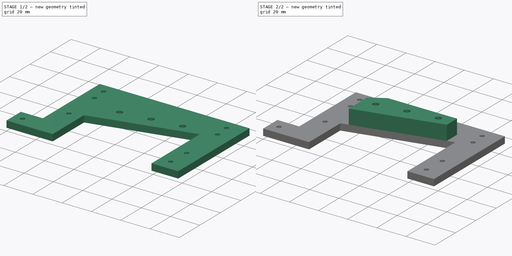
[diagram: build sequence overview — one tinted view per stage of 2, left to right]
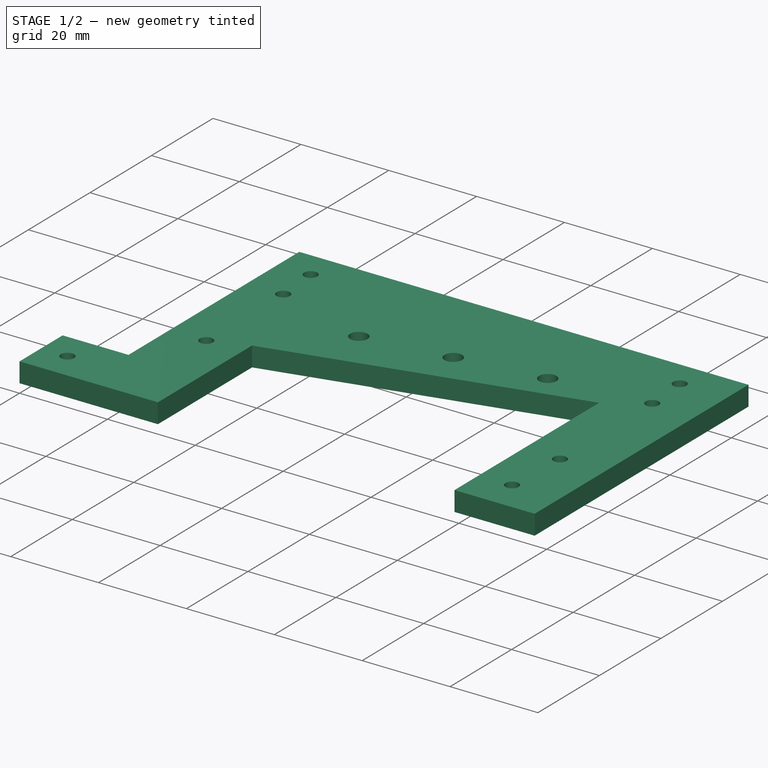
[diagram: stage 1 of 2 — iso view after this stage's code; geometry added in this stage tinted green]
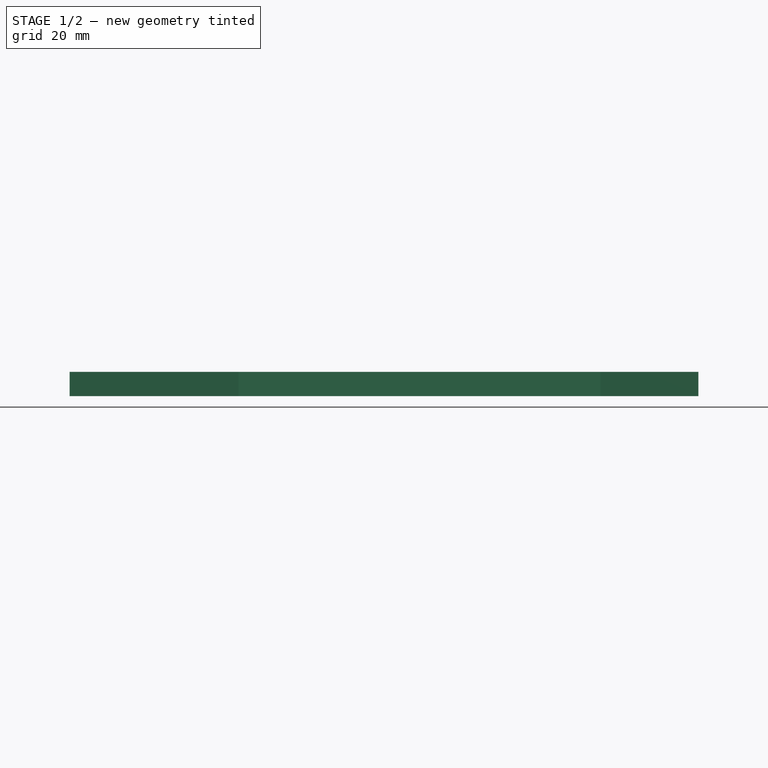
[diagram: stage 1 of 2 — front view after this stage's code; geometry added in this stage tinted green]
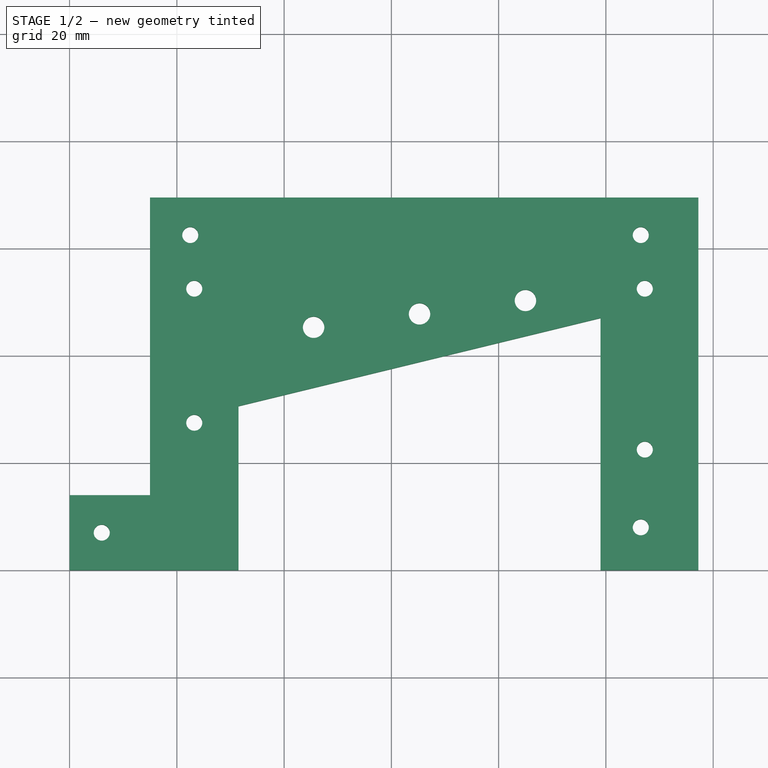
[diagram: stage 1 of 2 — top view after this stage's code; geometry added in this stage tinted green]
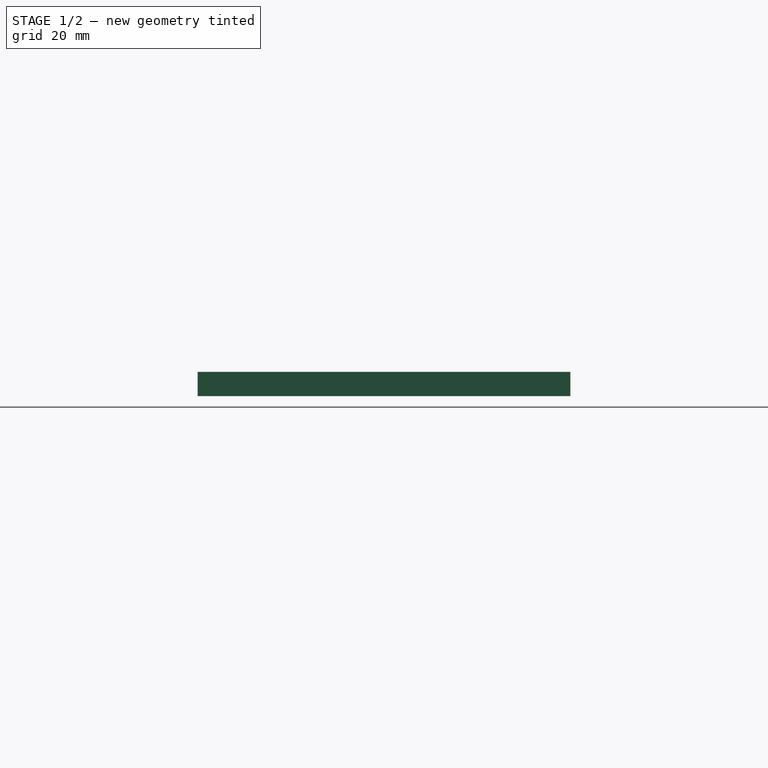
[diagram: stage 1 of 2 — right view after this stage's code; geometry added in this stage tinted green]
FCSTD DOCUMENT  (FreeCAD 0.20R29177 +426 (Git))
Label: Harp
License: All rights reserved
LicenseURL: http://en.wikipedia.org/wiki/All_rights_reserved
objects: Sketcher::SketchObject×3, App::Part×3, App::DocumentObjectGroup×3, PartDesign::Pad×2, App::Link×2, PartDesign::Body×1, PartDesign::CoordinateSystem×1, App::FeaturePython×1
note: 9 computed .brp shape members not serialized (recipe doc carries the construction recipe); baked Part::Feature solids carry a one-line shape summary decoded from their .brp

FEATURE [Sketcher::SketchObject] Sketch
  FullyConstrained = true
  MapMode = 5
  Support = -> [XY_Plane001]
  sketch-geometry (38):
    g0: LineSegment StartX=0 StartY=0 StartZ=0 EndX=117.25 EndY=0 EndZ=0
    g1: LineSegment StartX=117.25 StartY=0 StartZ=0 EndX=117.25 EndY=69.5 EndZ=0
    g2: LineSegment StartX=117.25 StartY=69.5 StartZ=0 EndX=15 EndY=69.5 EndZ=0
    g3: LineSegment StartX=15 StartY=69.5 StartZ=0 EndX=15 EndY=14 EndZ=0
    g4: LineSegment StartX=15 StartY=14 StartZ=0 EndX=0 EndY=14 EndZ=0
    g5: LineSegment StartX=0 StartY=14 StartZ=0 EndX=0 EndY=0 EndZ=0
    g6: Circle CenterX=6 CenterY=7 CenterZ=0 NormalX=0 NormalY=0 NormalZ=1 AngleXU=0 Radius=1.5
    g7: Circle CenterX=23.25 CenterY=27.5 CenterZ=0 NormalX=0 NormalY=0 NormalZ=1 AngleXU=0 Radius=1.5
    g8: Circle CenterX=23.25 CenterY=52.5 CenterZ=0 NormalX=0 NormalY=0 NormalZ=1 AngleXU=0 Radius=1.5
    g9: Circle CenterX=22.5 CenterY=62.5 CenterZ=0 NormalX=0 NormalY=0 NormalZ=1 AngleXU=0 Radius=1.5
    g10: Circle CenterX=106.5 CenterY=62.5 CenterZ=0 NormalX=0 NormalY=0 NormalZ=1 AngleXU=0 Radius=1.5
    g11: Circle CenterX=107.25 CenterY=52.5 CenterZ=0 NormalX=0 NormalY=0 NormalZ=1 AngleXU=0 Radius=1.5
    g12: Circle CenterX=107.25 CenterY=22.5 CenterZ=0 NormalX=0 NormalY=0 NormalZ=1 AngleXU=0 Radius=1.5
    g13: Circle CenterX=106.5 CenterY=8 CenterZ=0 NormalX=0 NormalY=0 NormalZ=1 AngleXU=0 Radius=1.5
    g14: Circle CenterX=45.5 CenterY=45.3 CenterZ=0 NormalX=0 NormalY=0 NormalZ=1 AngleXU=0 Radius=2
    g15: Circle CenterX=65.25 CenterY=47.8 CenterZ=0 NormalX=0 NormalY=0 NormalZ=1 AngleXU=0 Radius=2
    g16: Circle CenterX=85 CenterY=50.3 CenterZ=0 NormalX=0 NormalY=0 NormalZ=1 AngleXU=0 Radius=2
    g17: LineSegment StartX=22.5 StartY=62.5 StartZ=0 EndX=15 EndY=62.5 EndZ=0
    g18: LineSegment StartX=23.25 StartY=52.5 StartZ=0 EndX=15 EndY=52.5 EndZ=0
    g19: LineSegment StartX=6 StartY=7 StartZ=0 EndX=0 EndY=7 EndZ=0
    g20: LineSegment StartX=23.25 StartY=27.5 StartZ=0 EndX=15 EndY=27.5 EndZ=0
    g21: LineSegment StartX=45.5 StartY=45.3 StartZ=0 EndX=45.5 EndY=69.5 EndZ=0
    g22: LineSegment StartX=85 StartY=50.3 StartZ=0 EndX=85 EndY=69.5 EndZ=0
    g23: LineSegment StartX=106.5 StartY=62.5 StartZ=0 EndX=117.25 EndY=62.5 EndZ=0
    g24: LineSegment StartX=107.25 StartY=52.5 StartZ=0 EndX=117.25 EndY=52.5 EndZ=0
    g25: LineSegment StartX=107.25 StartY=22.5 StartZ=0 EndX=117.25 EndY=22.5 EndZ=0
    g26: LineSegment StartX=106.5 StartY=8 StartZ=0 EndX=117.25 EndY=8 EndZ=0
    g27: LineSegment StartX=31.5 StartY=0 StartZ=0 EndX=99 EndY=0 EndZ=0
    g28: LineSegment StartX=99 StartY=0 StartZ=0 EndX=99 EndY=47.0174 EndZ=0
    g29: LineSegment StartX=99 StartY=47.0174 StartZ=0 EndX=31.5 EndY=30.5826 EndZ=0
    g30: LineSegment StartX=31.5 StartY=30.5826 StartZ=0 EndX=31.5 EndY=0 EndZ=0
    g31: LineSegment StartX=45.5 StartY=45.3 StartZ=0 EndX=85 EndY=50.3 EndZ=0
    g32: GeomPoint X=65.25 Y=47.8 Z=0
    g33: LineSegment StartX=85 StartY=50.3 StartZ=0 EndX=94 EndY=50.3 EndZ=0
    g34: LineSegment StartX=94 StartY=50.3 StartZ=0 EndX=94 EndY=45.8 EndZ=0
    g35: LineSegment StartX=36.5 StartY=31.8 StartZ=0 EndX=36.5 EndY=0 EndZ=0
    g36: LineSegment StartX=31.5 StartY=0 StartZ=0 EndX=0 EndY=0 EndZ=0
    g37: LineSegment StartX=99 StartY=0 StartZ=0 EndX=117.25 EndY=0 EndZ=0
  constraints (106):
    c: Coincident(g-1,g0)
    c: Coincident(g0,g1)
    c: Coincident(g1,g2)
    c: Coincident(g2,g3)
    c: Coincident(g3,g4)
    c: Coincident(g4,g5)
    c: Coincident(g5,g0)
    c: Horizontal(g0)
    c: Parallel(g0,g4)
    c: Parallel(g2,g4)
    c: Parallel(g3,g1)
    c: Parallel(g5,g3)
    c: Perpendicular(g0,g1)
    c: Distance(g5) = 14
    c: Distance(g4) = 15
    c: Distance(g0) = 117.25
    c: Distance(g1) = 69.5
    c: Diameter(g6) = 3
    c: Coincident(g17,g9)
    c: PointOnObject(g17,g3)
    c: Coincident(g18,g8)
    c: PointOnObject(g18,g3)
    c: Coincident(g19,g6)
    c: Coincident(g20,g7)
    c: PointOnObject(g20,g3)
    c: Coincident(g21,g14)
    c: PointOnObject(g21,g2)
    c: Coincident(g22,g16)
    c: Coincident(g23,g10)
    c: PointOnObject(g23,g1)
    c: Coincident(g24,g11)
    c: PointOnObject(g24,g1)
    c: Coincident(g25,g12)
    c: PointOnObject(g25,g1)
    c: Coincident(g26,g13)
    c: PointOnObject(g26,g1)
    c: Perpendicular(g5,g19)
    c: Perpendicular(g3,g20)
    c: Perpendicular(g3,g18)
    c: Perpendicular(g3,g17)
    c: Perpendicular(g2,g21)
    c: Perpendicular(g2,g22)
    c: Perpendicular(g1,g23)
    c: Perpendicular(g1,g24)
    c: Perpendicular(g1,g25)
    c: Perpendicular(g1,g26)
    c: Symmetric(g5,g5,g19)
    c: Distance(g18) = 8.25
    c: Equal(g20,g18)
    c: Distance(g18,g20) = 25
    c: Distance(g19) = 6
    c: Distance(g17,g2) = 7
    c: Distance(g17) = 7.5
    c: Distance(g18,g2) = 17
    c: Distance(g21) = 24.2
    c: Distance(g22) = 19.2
    c: Distance(g21,g2) = 30.5
    c: Distance(g21,g22) = 39.5
    c: Distance(g23,g1) = 7
    c: Distance(g23) = 10.75
    c: Distance(g24,g25) = 30
    c: Distance(g24,g1) = 17
    c: Distance(g24) = 10
    c: Equal(g25,g24)
    c: Distance(g26) = 10.75
    c: Distance(g26,g0) = 8
    c: Coincident(g27,g28)
    c: Coincident(g28,g29)
    c: Coincident(g29,g30)
    c: Coincident(g30,g27)
    c: Coincident(g31,g14)
    c: Coincident(g31,g16)
    c: Symmetric(g31,g31,g32)
    c: Coincident(g15,g32)
    c: PointOnObject(g22,g2)
    c: Distance(g27) = 67.5
    c: Parallel(g30,g28)
    c: Perpendicular(g27,g30)
    c: Distance(g28,g1) = 18.25
    c: Coincident(g33,g16)
    c: Coincident(g34,g33)
    c: PointOnObject(g34,g29)
    c: Parallel(g33,g0)
    c: Perpendicular(g33,g34)
    c: Distance(g33) = 9
    c: Distance(g34) = 4.5
    c: PointOnObject(g35,g29)
    c: PointOnObject(g35,g0)
    c: Perpendicular(g0,g35)
    c: Distance(g35) = 31.8
    c: Distance(g35,g0) = 36.5
    c: Tangent(g0,g27)
    c: Coincident(g36,g30)
    c: Coincident(g36,g5)
    c: Coincident(g37,g28)
    c: Coincident(g37,g1)
    c: Equal(g6,g7)
    c: Equal(g7,g8)
    c: Equal(g8,g9)
    c: Equal(g9,g10)
    c: Equal(g10,g11)
    c: Equal(g11,g12)
    c: Equal(g12,g13)
    c: Equal(g14,g15)
    c: Equal(g15,g16)
    c: Diameter(g14) = 4
FEATURE [PartDesign::Pad] Pad
  Direction = (0,0,1)
  Length = 4.5
  Length2 = 10
  Profile = -> Sketch
  ReferenceAxis = -> Sketch [N_Axis]
  Type = 0
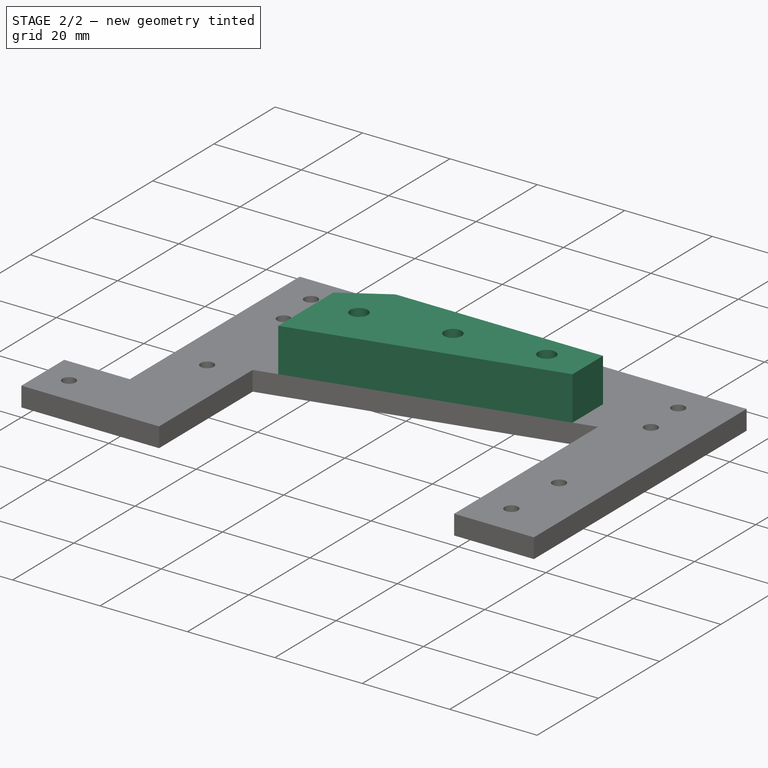
[diagram: stage 2 of 2 — iso view after this stage's code; geometry added in this stage tinted green]
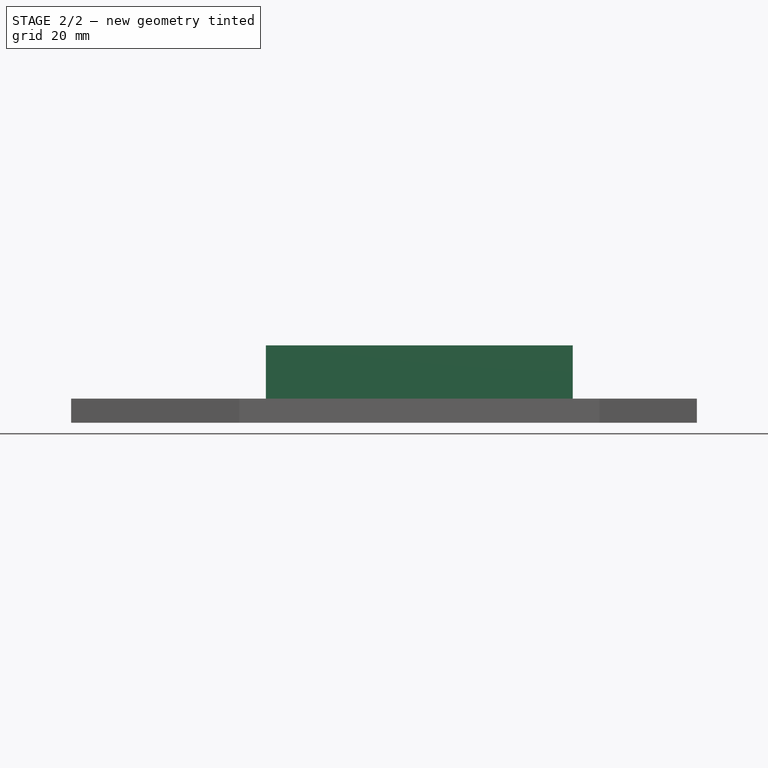
[diagram: stage 2 of 2 — front view after this stage's code; geometry added in this stage tinted green]
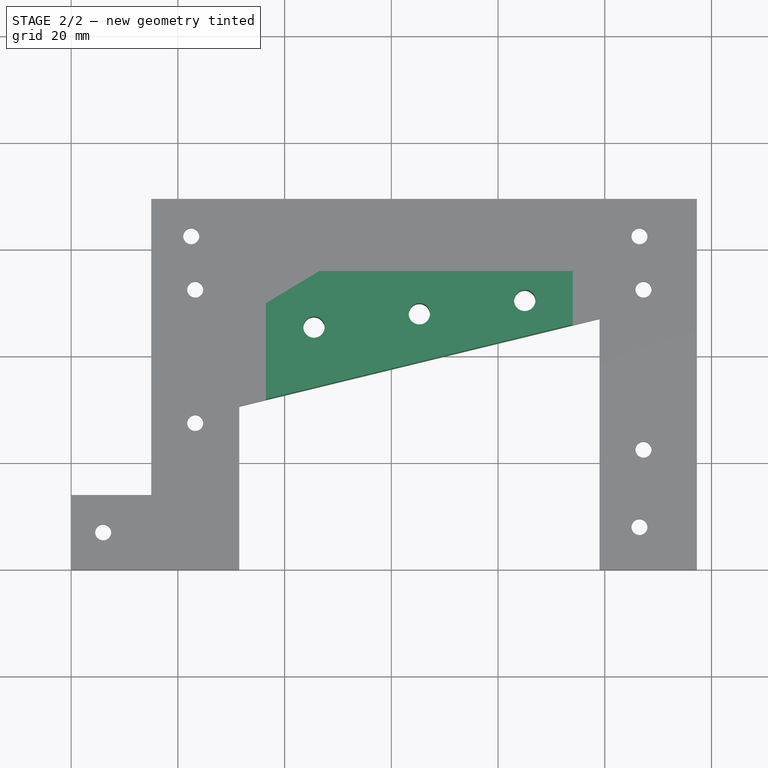
[diagram: stage 2 of 2 — top view after this stage's code; geometry added in this stage tinted green]
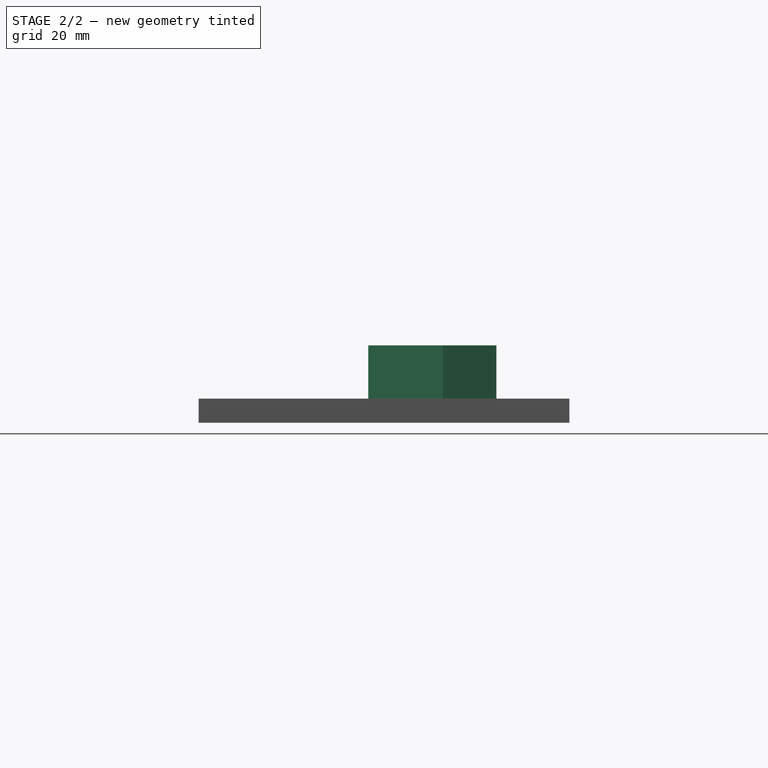
[diagram: stage 2 of 2 — right view after this stage's code; geometry added in this stage tinted green]
FEATURE [Sketcher::SketchObject] Sketch001
  ExternalGeometry = -> [Pad]
  FullyConstrained = true
  MapMode = 5
  Placement = pos=(0,0,4.5) rot=(0,0,1;0rad)
  Support = -> [Pad]
  sketch-geometry (8):
    g0: LineSegment StartX=36.5 StartY=31.8 StartZ=0 EndX=36.5 EndY=49.8 EndZ=0
    g1: LineSegment StartX=36.5 StartY=49.8 StartZ=0 EndX=46.5 EndY=55.8 EndZ=0
    g2: LineSegment StartX=46.5 StartY=55.8 StartZ=0 EndX=94 EndY=55.8 EndZ=0
    g3: LineSegment StartX=94 StartY=55.8 StartZ=0 EndX=94 EndY=45.8 EndZ=0
    g4: LineSegment StartX=94 StartY=45.8 StartZ=0 EndX=36.5 EndY=31.8 EndZ=0
    g5: Circle CenterX=45.5 CenterY=45.3 CenterZ=0 NormalX=0 NormalY=0 NormalZ=1 AngleXU=0 Radius=2
    g6: Circle CenterX=65.25 CenterY=47.8 CenterZ=0 NormalX=0 NormalY=0 NormalZ=1 AngleXU=0 Radius=2
    g7: Circle CenterX=85 CenterY=50.3 CenterZ=0 NormalX=0 NormalY=0 NormalZ=1 AngleXU=0 Radius=2
  constraints (21):
    c: PointOnObject(g0,g-6)
    c: Coincident(g0,g1)
    c: Coincident(g1,g2)
    c: Coincident(g2,g3)
    c: PointOnObject(g3,g-6)
    c: Coincident(g3,g4)
    c: Coincident(g4,g0)
    c: Parallel(g0,g3)
    c: Parallel(g3,g-8)
    c: Distance(g-3,g3) = 9
    c: Distance(g0,g3) = 57.5
    c: Distance(g2) = 47.5
    c: Distance(g0) = 18
    c: Distance(g3) = 10
    c: Perpendicular(g3,g2)
    c: Coincident(g5,g-5)
    c: Coincident(g6,g-4)
    c: Coincident(g7,g-3)
    c: Equal(g5,g6)
    c: Equal(g6,g7)
    c: Equal(g7,g-3)
FEATURE [PartDesign::Pad] Pad001
  BaseFeature = -> Pad
  Direction = (0,0,1)
  Length = 10
  Length2 = 10
  Profile = -> Sketch001
  ReferenceAxis = -> Sketch001 [N_Axis]
  Type = 0
FEATURE [PartDesign::Body] Body
  Group = -> [Sketch,Pad,Sketch001,Pad001]
  Origin = -> Origin001
  Tip = -> Pad001
FEATURE [App::Part] Part
  Group = -> [Body]
  Origin = -> Origin
FEATURE [Sketcher::SketchObject] Sketch002
  FullyConstrained = false
  MapMode = 5
  Support = -> [XY_Plane002]
  sketch-geometry (4):
    g0: LineSegment StartX=20.4603 StartY=97.8811 StartZ=0 EndX=59.6365 EndY=97.8811 EndZ=0
    g1: LineSegment StartX=59.6365 StartY=97.8811 StartZ=0 EndX=59.6365 EndY=130.825 EndZ=0
    g2: LineSegment StartX=59.6365 StartY=130.825 StartZ=0 EndX=20.4603 EndY=130.825 EndZ=0
    g3: LineSegment StartX=20.4603 StartY=130.825 StartZ=0 EndX=20.4603 EndY=97.8811 EndZ=0
  constraints (8):
    c: Coincident(g0,g1)
    c: Coincident(g1,g2)
    c: Coincident(g2,g3)
    c: Coincident(g3,g0)
    c: Horizontal(g0)
    c: Horizontal(g2)
    c: Vertical(g1)
    c: Vertical(g3)
FEATURE [App::Part] Part001
  Group = -> [Sketch002]
  Origin = -> Origin002
FEATURE [App::DocumentObjectGroup] Parts
  Group = -> [Part,Part001]
FEATURE [PartDesign::CoordinateSystem] LCS_Origin
  AttacherType = Attacher::AttachEngine3D
  MapMode = 2
  Support = -> [X_Axis003]
FEATURE [App::DocumentObjectGroup] Constraints
FEATURE [App::FeaturePython] Variables  # WARN: FeaturePython — macro-defined, semantics opaque (R4)
  Type = App::PropertyContainer
FEATURE [App::DocumentObjectGroup] Configurations
FEATURE [App::Link] Part002
  LinkedObject = -> Part
FEATURE [App::Link] Part003
  LinkedObject = -> Part
FEATURE [App::Part] Assembly
  AssemblyType = Part::Link
  Group = -> [LCS_Origin,Constraints,Variables,Configurations,Part002,Part003]
  Origin = -> Origin003
  Type = Assembly
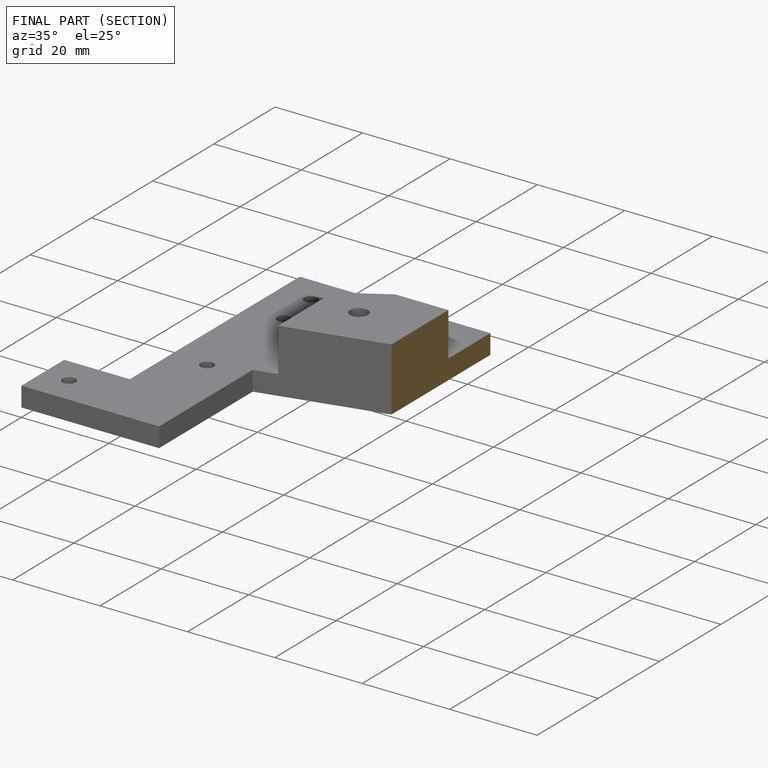
[diagram: finished part — half-section view (interior)]
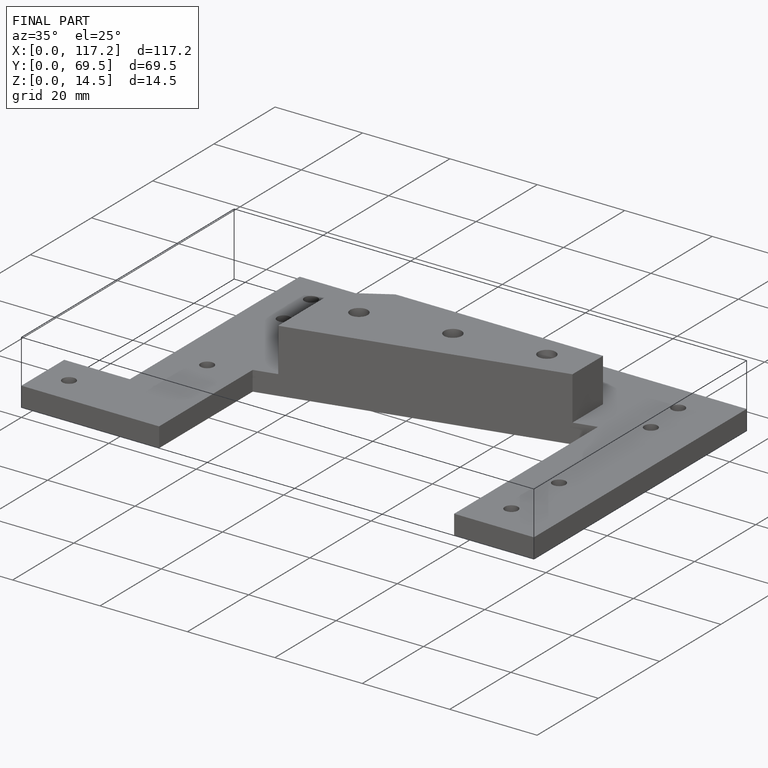
[diagram: finished part — iso view with bounding-box wireframe]
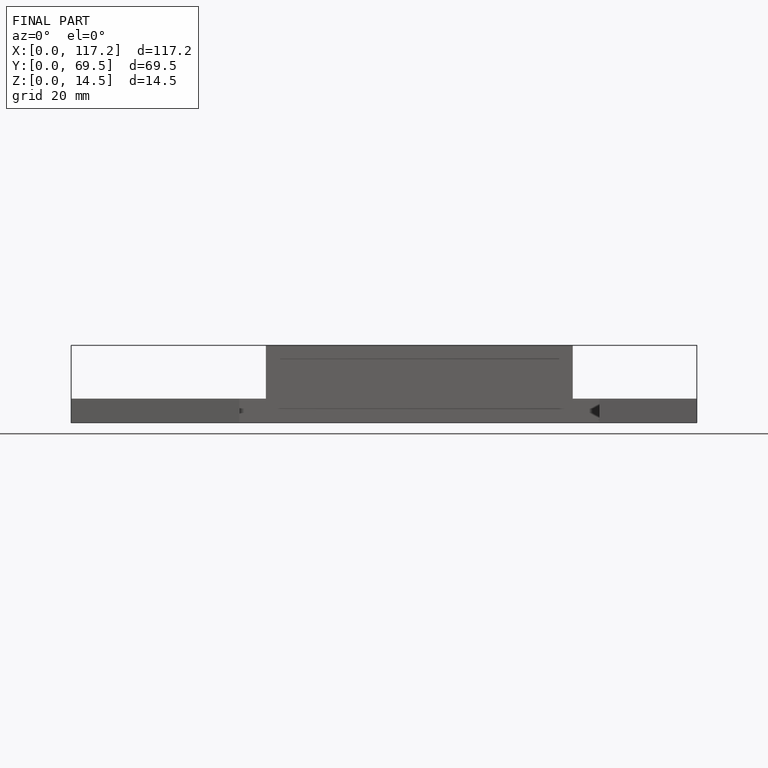
[diagram: finished part — front view with bounding-box wireframe]
